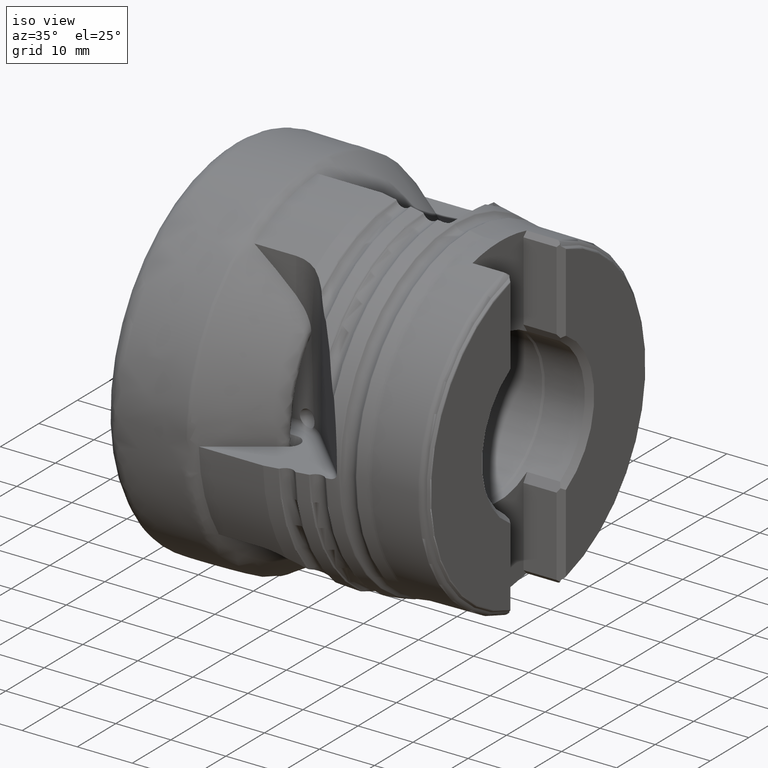
[diagram: clean part render]
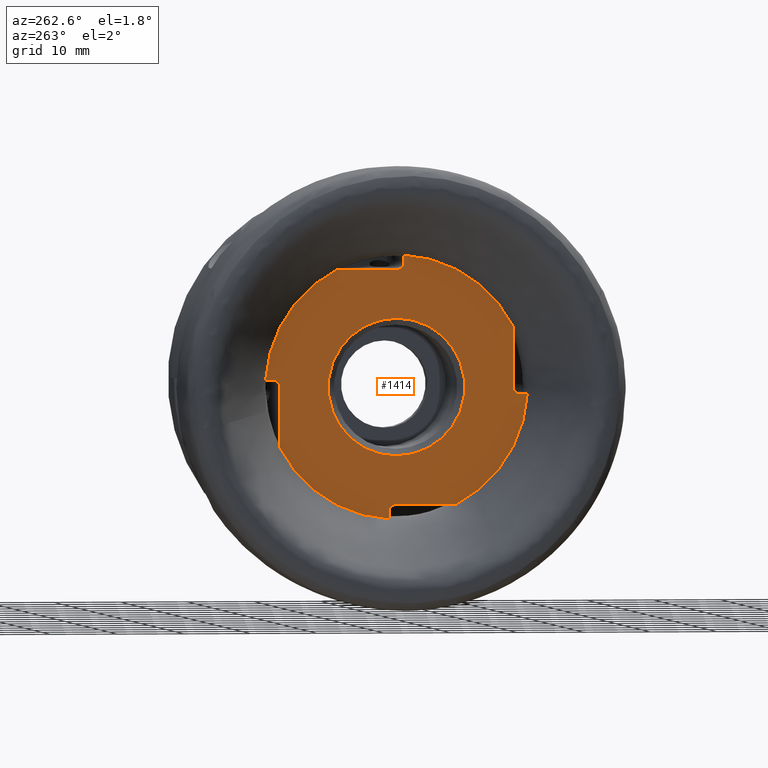
[diagram: tour spotlight — one face highlighted and labeled with its STEP entity id]
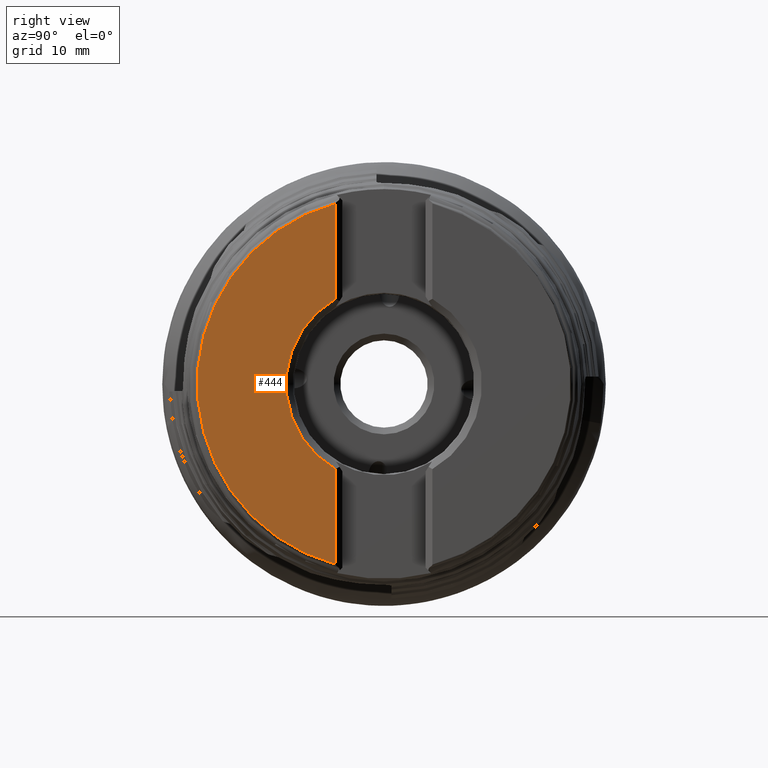
[diagram: tour spotlight — one face highlighted and labeled with its STEP entity id]
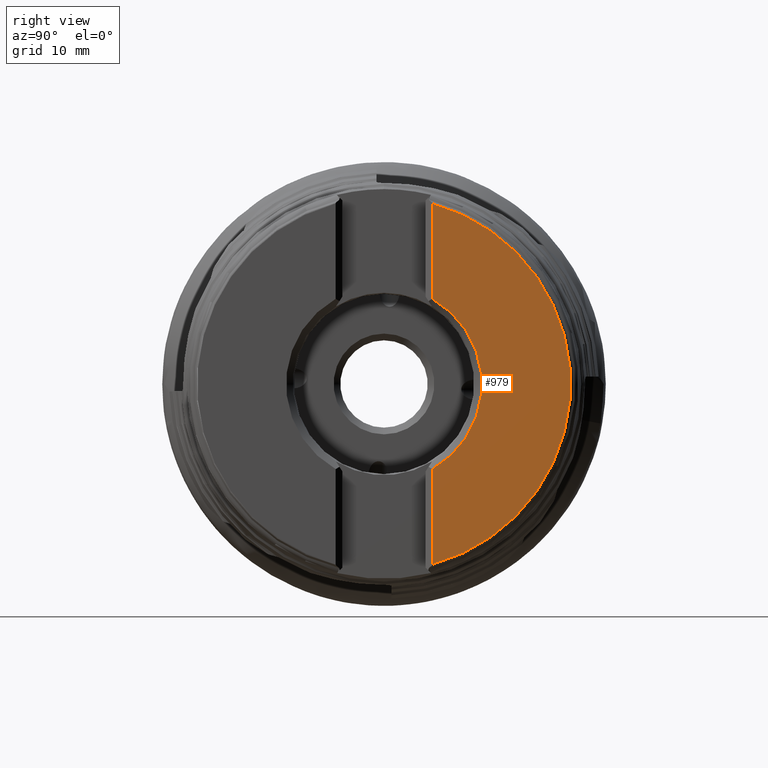
[diagram: tour spotlight — one face highlighted and labeled with its STEP entity id]
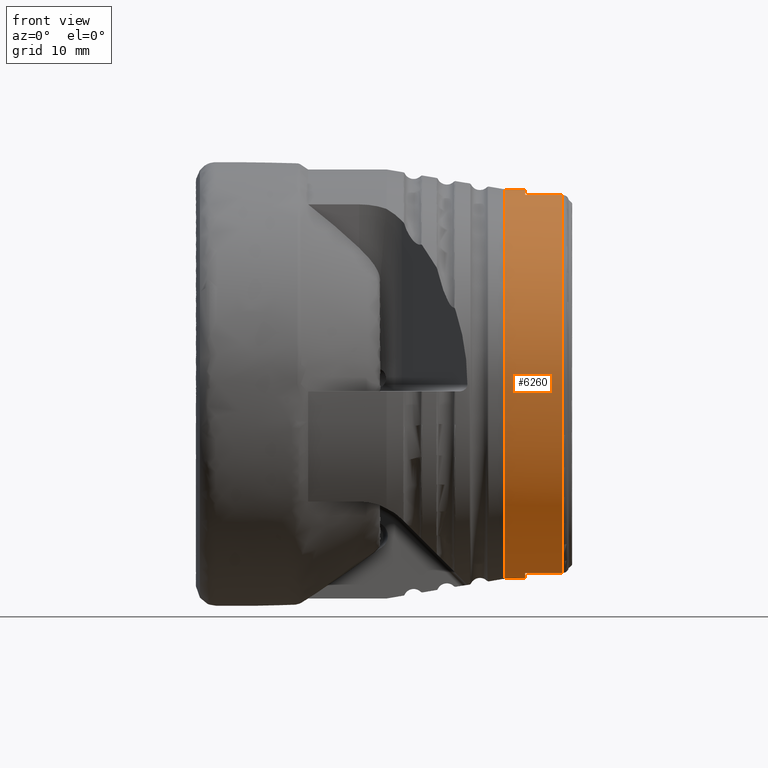
[diagram: tour spotlight — one face highlighted and labeled with its STEP entity id]
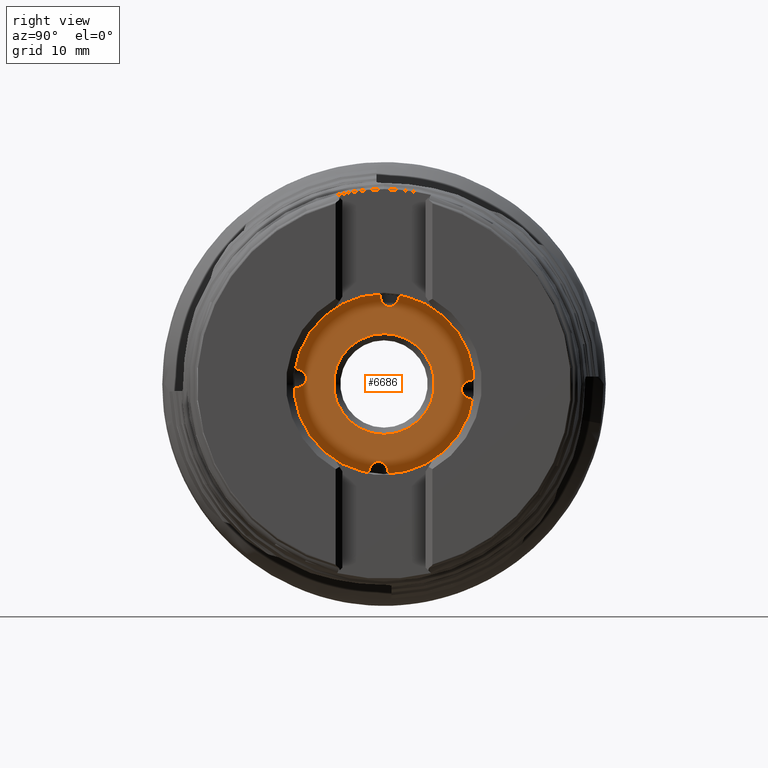
[diagram: tour spotlight — one face highlighted and labeled with its STEP entity id]
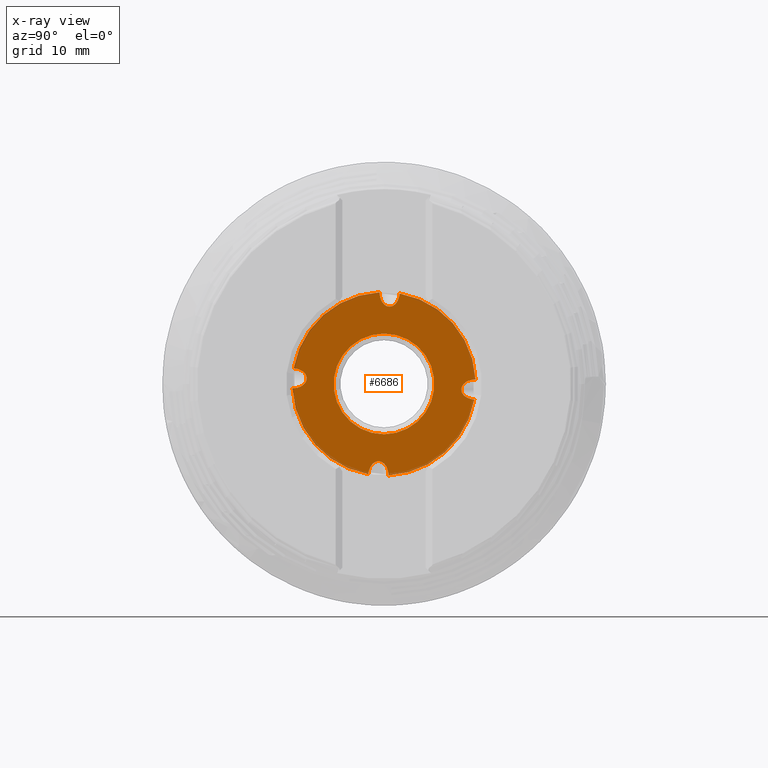
[diagram: x-ray of the same camera — body ghosted, this tour face saturated]
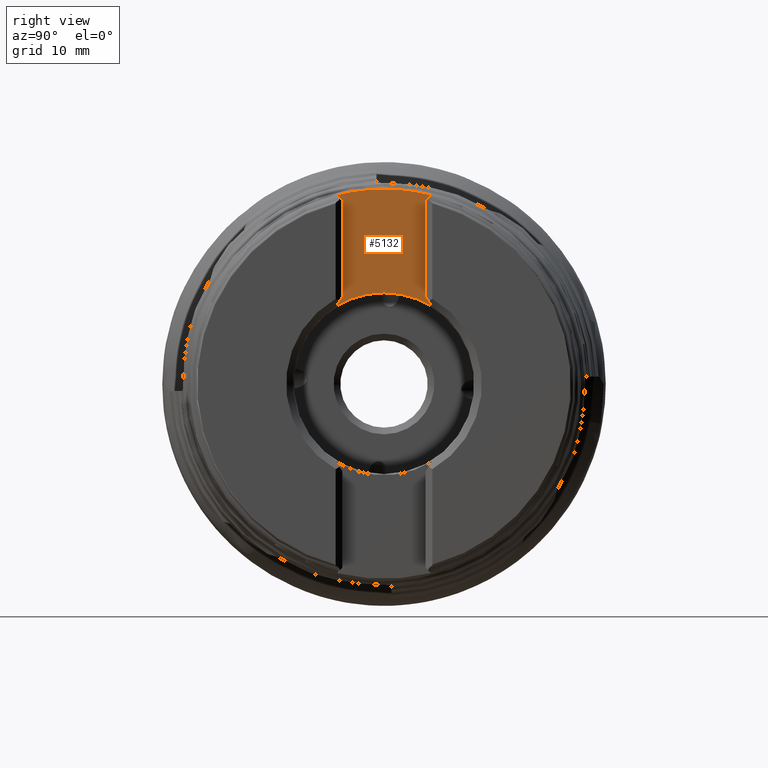
[diagram: tour spotlight — one face highlighted and labeled with its STEP entity id]
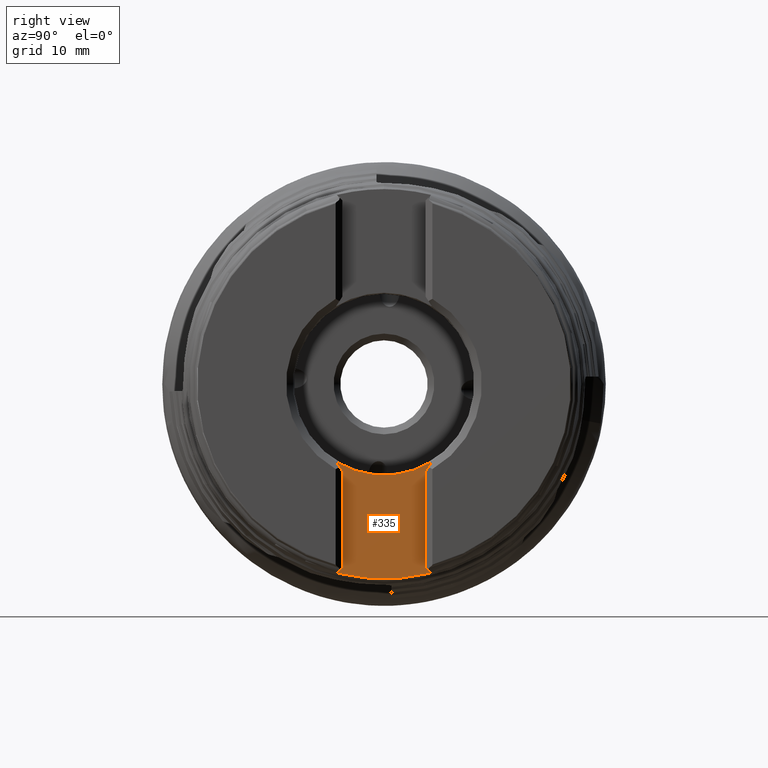
[diagram: tour spotlight — one face highlighted and labeled with its STEP entity id]
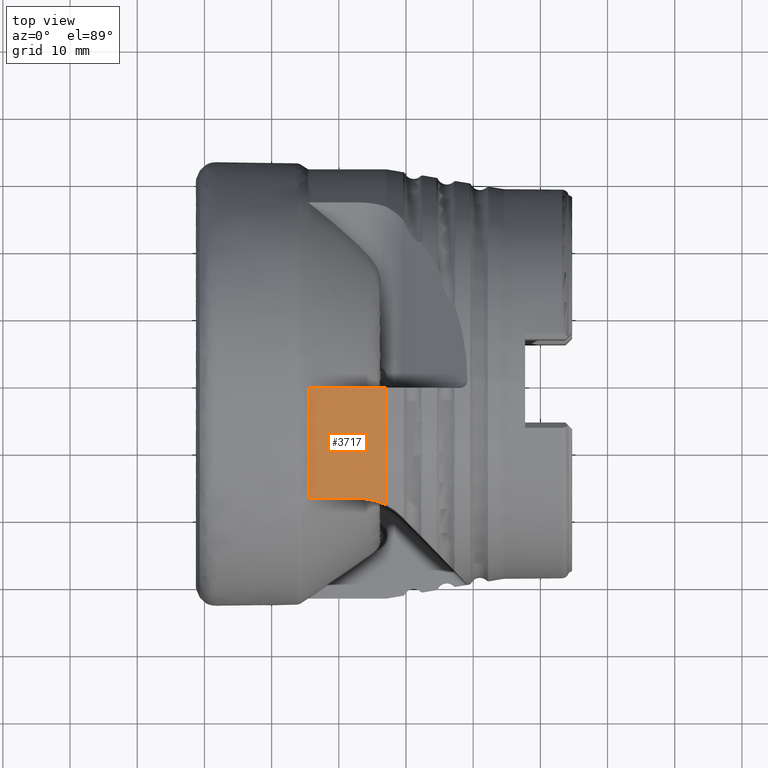
[diagram: tour spotlight — one face highlighted and labeled with its STEP entity id]
A machine part: a face-by-face anatomy tour. The part has 156 B-rep faces; the first image is the clean iso view, then the 8 largest visible faces are spotlighted one at a time (largest first), each with its STEP entity span.

Face 1 — auxiliary view, entity #1414. In plain terms, the highlighted planar face has unit normal (1, 0, 0).
Definition (entity closure, byte-faithful):
#97 = AXIS2_PLACEMENT_3D ( 'NONE', #2417, #5689, #4149 ) ;
#157 = VERTEX_POINT ( 'NONE', #573 ) ;
#193 = VERTEX_POINT ( 'NONE', #399 ) ;
#258 = VERTEX_POINT ( 'NONE', #1388 ) ;
#262 = EDGE_CURVE ( 'NONE', #5828, #193, #5114, .T. ) ;
#277 = CARTESIAN_POINT ( 'NONE',  ( 12.29999999999999900, 8.966332676333999900, 17.50000000000000000 ) ) ;
#316 = ORIENTED_EDGE ( 'NONE', *, *, #3382, .F. ) ;
#373 = CARTESIAN_POINT ( 'NONE',  ( 12.29999999999999900, 21.37099999999999900, 17.50000000000000000 ) ) ;
#398 = EDGE_CURVE ( 'NONE', #1017, #5828, #415, .T. ) ;
#399 = CARTESIAN_POINT ( 'NONE',  ( 12.29999999999999900, -18.49999999999999600, -1.100000000000065800 ) ) ;
#415 = CIRCLE ( 'NONE', #97, 19.66329376433905600 ) ;
#421 = CARTESIAN_POINT ( 'NONE',  ( 12.29999999999999900, 17.50000000000000000, 0.1000000000001843000 ) ) ;
#443 = LINE ( 'NONE', #2611, #6798 ) ;
#499 = DIRECTION ( 'NONE',  ( -1.000000000000000000, -0.0000000000000000000, -0.0000000000000000000 ) ) ;
#521 = VERTEX_POINT ( 'NONE', #2186 ) ;
#538 = CARTESIAN_POINT ( 'NONE',  ( 12.29999999999999900, 19.63250166592873600, 1.100000000000207000 ) ) ;
#573 = CARTESIAN_POINT ( 'NONE',  ( 12.29999999999999900, 0.1000000000001243000, -17.49999999999999600 ) ) ;
#739 = CARTESIAN_POINT ( 'NONE',  ( 12.29999999999999200, 0.0000000000000000000, 0.0000000000000000000 ) ) ;
#773 = EDGE_CURVE ( 'NONE', #6380, #2682, #6277, .T. ) ;
#800 = FACE_OUTER_BOUND ( 'NONE', #3250, .T. ) ;
#827 = ORIENTED_EDGE ( 'NONE', *, *, #2426, .T. ) ;
#869 = CIRCLE ( 'NONE', #1316, 1.000000000000000000 ) ;
#922 = VECTOR ( 'NONE', #2641, 1000.000000000000000 ) ;
#947 = CIRCLE ( 'NONE', #6355, 19.66329376433905600 ) ;
#954 = EDGE_CURVE ( 'NONE', #521, #2705, #1415, .T. ) ;
#1017 = VERTEX_POINT ( 'NONE', #2220 ) ;
#1041 = LINE ( 'NONE', #373, #3858 ) ;
#1153 = DIRECTION ( 'NONE',  ( 0.0000000000000000000, 0.0000000000000000000, 1.000000000000000000 ) ) ;
#1247 = EDGE_CURVE ( 'NONE', #2181, #258, #3734, .T. ) ;
#1271 = DIRECTION ( 'NONE',  ( 0.0000000000000000000, 0.0000000000000000000, 1.000000000000000000 ) ) ;
#1292 = DIRECTION ( 'NONE',  ( 0.0000000000000000000, -1.053567433422051900E-014, 1.000000000000000000 ) ) ;
#1316 = AXIS2_PLACEMENT_3D ( 'NONE', #3205, #3364, #3983 ) ;
#1384 = EDGE_CURVE ( 'NONE', #5844, #5650, #6561, .T. ) ;
#1388 = CARTESIAN_POINT ( 'NONE',  ( 12.29999999999999900, -17.50000000000000400, -0.1000000000000621800 ) ) ;
#1412 = ORIENTED_EDGE ( 'NONE', *, *, #2563, .F. ) ;
#1414 = ADVANCED_FACE ( 'NONE', ( #2222, #800 ), #2246, .F. ) ;
#1415 = LINE ( 'NONE', #1965, #5436 ) ;
#1497 = AXIS2_PLACEMENT_3D ( 'NONE', #2294, #2206, #2195 ) ;
#1573 = EDGE_CURVE ( 'NONE', #193, #258, #5566, .T. ) ;
#1596 = CARTESIAN_POINT ( 'NONE',  ( 12.29999999999999900, -1.100000000000001600, 19.63250166592874600 ) ) ;
#1617 = CARTESIAN_POINT ( 'NONE',  ( 12.29999999999999900, -19.63250166592873900, -1.100000000000069800 ) ) ;
#1636 = CARTESIAN_POINT ( 'NONE',  ( 12.29999999999999900, -17.50000000000003600, 8.966332676333946600 ) ) ;
#1697 = DIRECTION ( 'NONE',  ( -1.000000000000000000, -0.0000000000000000000, -0.0000000000000000000 ) ) ;
#1790 = ORIENTED_EDGE ( 'NONE', *, *, #954, .F. ) ;
#1965 = CARTESIAN_POINT ( 'NONE',  ( 12.29999999999999900, 17.50000000000000000, -4.078359534776760800E-014 ) ) ;
#1979 = CARTESIAN_POINT ( 'NONE',  ( 12.29999999999999900, 1.100000000000130700, -18.49999999999999300 ) ) ;
#1991 = VERTEX_POINT ( 'NONE', #6346 ) ;
#2003 = DIRECTION ( 'NONE',  ( 0.0000000000000000000, -1.000000000000000000, -6.123031769111886300E-017 ) ) ;
#2006 = AXIS2_PLACEMENT_3D ( 'NONE', #6333, #3191, #6862 ) ;
#2036 = CARTESIAN_POINT ( 'NONE',  ( 12.29999999999999900, 0.0000000000000000000, 0.0000000000000000000 ) ) ;
#2129 = CARTESIAN_POINT ( 'NONE',  ( 12.29999999999999900, -1.100000000000001400, 18.50000000000000400 ) ) ;
#2181 = VERTEX_POINT ( 'NONE', #1636 ) ;
#2186 = CARTESIAN_POINT ( 'NONE',  ( 12.29999999999999900, 17.50000000000009600, -8.966332676333820500 ) ) ;
#2195 = DIRECTION ( 'NONE',  ( 0.0000000000000000000, 0.0000000000000000000, -1.000000000000000000 ) ) ;
#2206 = DIRECTION ( 'NONE',  ( 1.000000000000000000, 0.0000000000000000000, 0.0000000000000000000 ) ) ;
#2220 = CARTESIAN_POINT ( 'NONE',  ( 12.29999999999999900, -8.966332676333880900, -17.50000000000006400 ) ) ;
#2222 = FACE_BOUND ( 'NONE', #3535, .T. ) ;
#2246 = PLANE ( 'NONE',  #1497 ) ;
#2294 = CARTESIAN_POINT ( 'NONE',  ( 12.29999999999999900, 21.37099999999999900, 0.0000000000000000000 ) ) ;
#2347 = VERTEX_POINT ( 'NONE', #4143 ) ;
#2376 = EDGE_CURVE ( 'NONE', #5650, #157, #4988, .T. ) ;
#2417 = CARTESIAN_POINT ( 'NONE',  ( 12.29999999999999200, 0.0000000000000000000, 0.0000000000000000000 ) ) ;
#2426 = EDGE_CURVE ( 'NONE', #2601, #2347, #3440, .T. ) ;
#2563 = EDGE_CURVE ( 'NONE', #4522, #1991, #1041, .T. ) ;
#2601 = VERTEX_POINT ( 'NONE', #538 ) ;
#2611 = CARTESIAN_POINT ( 'NONE',  ( 12.29999999999999900, 21.37100000000012300, -17.49999999999985100 ) ) ;
#2641 = DIRECTION ( 'NONE',  ( 0.0000000000000000000, 1.000000000000000000, 3.552711656534252200E-015 ) ) ;
#2679 = AXIS2_PLACEMENT_3D ( 'NONE', #739, #4463, #1271 ) ;
#2682 = VERTEX_POINT ( 'NONE', #2129 ) ;
#2705 = VERTEX_POINT ( 'NONE', #421 ) ;
#2715 = ORIENTED_EDGE ( 'NONE', *, *, #398, .T. ) ;
#2792 = CARTESIAN_POINT ( 'NONE',  ( 12.29999999999999900, 1.100000000000000300, -1.427928362092949600E-013 ) ) ;
#2804 = DIRECTION ( 'NONE',  ( 0.0000000000000000000, -7.044192995377385600E-015, 1.000000000000000000 ) ) ;
#2811 = CARTESIAN_POINT ( 'NONE',  ( 12.29999999999999900, 21.37100000000000200, -1.099999999999924100 ) ) ;
#2856 = EDGE_CURVE ( 'NONE', #2347, #2705, #869, .T. ) ;
#2981 = ORIENTED_EDGE ( 'NONE', *, *, #1573, .T. ) ;
#2990 = ORIENTED_EDGE ( 'NONE', *, *, #5046, .T. ) ;
#2997 = EDGE_CURVE ( 'NONE', #6138, #6138, #6713, .T. ) ;
#3191 = DIRECTION ( 'NONE',  ( 1.000000000000000000, 0.0000000000000000000, 0.0000000000000000000 ) ) ;
#3205 = CARTESIAN_POINT ( 'NONE',  ( 12.29999999999999900, 18.49999999999999600, 0.1000000000001948400 ) ) ;
#3213 = DIRECTION ( 'NONE',  ( 0.0000000000000000000, 3.552711656534252200E-015, -1.000000000000000000 ) ) ;
#3250 = EDGE_LOOP ( 'NONE', ( #5597, #2990, #3780, #6345, #1412, #3586, #827, #5374, #1790, #5028, #3251, #4720, #316, #2715, #3891, #2981 ) ) ;
#3251 = ORIENTED_EDGE ( 'NONE', *, *, #1384, .T. ) ;
#3257 = DIRECTION ( 'NONE',  ( 0.0000000000000000000, 6.123031769111886300E-017, -1.000000000000000000 ) ) ;
#3364 = DIRECTION ( 'NONE',  ( 1.000000000000000000, 0.0000000000000000000, 0.0000000000000000000 ) ) ;
#3368 = CIRCLE ( 'NONE', #2679, 19.66329376433905600 ) ;
#3382 = EDGE_CURVE ( 'NONE', #1017, #157, #443, .T. ) ;
#3394 = CARTESIAN_POINT ( 'NONE',  ( 12.29999999999999900, -17.50000000000000400, -1.380974548011429300E-013 ) ) ;
#3440 = LINE ( 'NONE', #5003, #4516 ) ;
#3535 = EDGE_LOOP ( 'NONE', ( #5791 ) ) ;
#3586 = ORIENTED_EDGE ( 'NONE', *, *, #4361, .T. ) ;
#3635 = AXIS2_PLACEMENT_3D ( 'NONE', #4850, #1697, #1153 ) ;
#3677 = CARTESIAN_POINT ( 'NONE',  ( 12.29999999999999200, 0.0000000000000000000, 0.0000000000000000000 ) ) ;
#3734 = LINE ( 'NONE', #3394, #6182 ) ;
#3780 = ORIENTED_EDGE ( 'NONE', *, *, #773, .T. ) ;
#3846 = EDGE_CURVE ( 'NONE', #521, #5844, #947, .T. ) ;
#3858 = VECTOR ( 'NONE', #2003, 1000.000000000000000 ) ;
#3891 = ORIENTED_EDGE ( 'NONE', *, *, #262, .T. ) ;
#3983 = DIRECTION ( 'NONE',  ( 0.0000000000000000000, 0.0000000000000000000, -1.000000000000000000 ) ) ;
#3987 = DIRECTION ( 'NONE',  ( -1.000000000000000000, -0.0000000000000000000, -0.0000000000000000000 ) ) ;
#4079 = AXIS2_PLACEMENT_3D ( 'NONE', #4525, #4538, #4567 ) ;
#4143 = CARTESIAN_POINT ( 'NONE',  ( 12.29999999999999900, 18.49999999999998600, 1.100000000000195000 ) ) ;
#4149 = DIRECTION ( 'NONE',  ( 0.0000000000000000000, 0.0000000000000000000, 1.000000000000000000 ) ) ;
#4227 = DIRECTION ( 'NONE',  ( 0.0000000000000000000, 0.0000000000000000000, 1.000000000000000000 ) ) ;
#4361 = EDGE_CURVE ( 'NONE', #4522, #2601, #5319, .T. ) ;
#4463 = DIRECTION ( 'NONE',  ( -1.000000000000000000, -0.0000000000000000000, -0.0000000000000000000 ) ) ;
#4516 = VECTOR ( 'NONE', #4836, 1000.000000000000000 ) ;
#4522 = VERTEX_POINT ( 'NONE', #277 ) ;
#4525 = CARTESIAN_POINT ( 'NONE',  ( 12.29999999999999900, 0.1000000000001301800, -18.50000000000000000 ) ) ;
#4538 = DIRECTION ( 'NONE',  ( 1.000000000000000000, 0.0000000000000000000, 0.0000000000000000000 ) ) ;
#4567 = DIRECTION ( 'NONE',  ( 0.0000000000000000000, 0.0000000000000000000, -1.000000000000000000 ) ) ;
#4720 = ORIENTED_EDGE ( 'NONE', *, *, #2376, .T. ) ;
#4836 = DIRECTION ( 'NONE',  ( 0.0000000000000000000, -1.000000000000000000, -1.053567433422051900E-014 ) ) ;
#4850 = CARTESIAN_POINT ( 'NONE',  ( 12.29999999999999200, 0.0000000000000000000, 0.0000000000000000000 ) ) ;
#4854 = AXIS2_PLACEMENT_3D ( 'NONE', #2036, #3987, #6595 ) ;
#4872 = VECTOR ( 'NONE', #3257, 1000.000000000000000 ) ;
#4988 = CIRCLE ( 'NONE', #4079, 1.000000000000000900 ) ;
#5003 = CARTESIAN_POINT ( 'NONE',  ( 12.29999999999999900, 21.37099999999998800, 1.100000000000225200 ) ) ;
#5028 = ORIENTED_EDGE ( 'NONE', *, *, #3846, .T. ) ;
#5046 = EDGE_CURVE ( 'NONE', #2181, #6380, #3368, .T. ) ;
#5114 = LINE ( 'NONE', #2811, #922 ) ;
#5161 = VECTOR ( 'NONE', #2804, 1000.000000000000000 ) ;
#5210 = DIRECTION ( 'NONE',  ( 0.0000000000000000000, 1.000000000000000000, 7.044192995377386400E-015 ) ) ;
#5319 = CIRCLE ( 'NONE', #3635, 19.66329376433905600 ) ;
#5370 = AXIS2_PLACEMENT_3D ( 'NONE', #6244, #6230, #6214 ) ;
#5374 = ORIENTED_EDGE ( 'NONE', *, *, #2856, .T. ) ;
#5392 = CIRCLE ( 'NONE', #2006, 1.000000000000000900 ) ;
#5436 = VECTOR ( 'NONE', #1292, 1000.000000000000000 ) ;
#5566 = CIRCLE ( 'NONE', #5370, 1.000000000000000000 ) ;
#5597 = ORIENTED_EDGE ( 'NONE', *, *, #1247, .F. ) ;
#5650 = VERTEX_POINT ( 'NONE', #1979 ) ;
#5689 = DIRECTION ( 'NONE',  ( -1.000000000000000000, -0.0000000000000000000, -0.0000000000000000000 ) ) ;
#5791 = ORIENTED_EDGE ( 'NONE', *, *, #2997, .F. ) ;
#5828 = VERTEX_POINT ( 'NONE', #1617 ) ;
#5844 = VERTEX_POINT ( 'NONE', #6373 ) ;
#5955 = CARTESIAN_POINT ( 'NONE',  ( 12.29999999999999900, 0.0000000000000000000, 10.24999999999999500 ) ) ;
#6138 = VERTEX_POINT ( 'NONE', #5955 ) ;
#6182 = VECTOR ( 'NONE', #3213, 1000.000000000000000 ) ;
#6214 = DIRECTION ( 'NONE',  ( 0.0000000000000000000, 0.0000000000000000000, -1.000000000000000000 ) ) ;
#6230 = DIRECTION ( 'NONE',  ( 1.000000000000000000, 0.0000000000000000000, 0.0000000000000000000 ) ) ;
#6244 = CARTESIAN_POINT ( 'NONE',  ( 12.29999999999999900, -18.50000000000000000, -0.1000000000000657300 ) ) ;
#6277 = LINE ( 'NONE', #6630, #4872 ) ;
#6333 = CARTESIAN_POINT ( 'NONE',  ( 12.29999999999999900, -0.1000000000000010700, 18.50000000000000400 ) ) ;
#6335 = EDGE_CURVE ( 'NONE', #2682, #1991, #5392, .T. ) ;
#6345 = ORIENTED_EDGE ( 'NONE', *, *, #6335, .T. ) ;
#6346 = CARTESIAN_POINT ( 'NONE',  ( 12.29999999999999900, -0.09999999999999939500, 17.50000000000000000 ) ) ;
#6355 = AXIS2_PLACEMENT_3D ( 'NONE', #3677, #499, #4227 ) ;
#6373 = CARTESIAN_POINT ( 'NONE',  ( 12.29999999999999900, 1.100000000000138600, -19.63250166592873900 ) ) ;
#6380 = VERTEX_POINT ( 'NONE', #1596 ) ;
#6561 = LINE ( 'NONE', #2792, #5161 ) ;
#6595 = DIRECTION ( 'NONE',  ( 0.0000000000000000000, 0.0000000000000000000, 1.000000000000000000 ) ) ;
#6630 = CARTESIAN_POINT ( 'NONE',  ( 12.29999999999999900, -1.100000000000000300, -1.375906468837131800E-015 ) ) ;
#6713 = CIRCLE ( 'NONE', #4854, 10.24999999999999500 ) ;
#6798 = VECTOR ( 'NONE', #5210, 1000.000000000000000 ) ;
#6862 = DIRECTION ( 'NONE',  ( 0.0000000000000000000, 0.0000000000000000000, -1.000000000000000000 ) ) ;

Face 2 — right view, entity #444. In plain terms, the highlighted planar face has unit normal (-1, 0, -0).
Definition (entity closure, byte-faithful):
#45 = CARTESIAN_POINT ( 'NONE',  ( 54.72299999999997800, -7.199999999999977100, -29.00000000000000000 ) ) ;
#260 = VECTOR ( 'NONE', #1179, 1000.000000000000000 ) ;
#278 = ORIENTED_EDGE ( 'NONE', *, *, #6722, .F. ) ;
#444 = ADVANCED_FACE ( 'NONE', ( #5698 ), #505, .F. ) ;
#505 = PLANE ( 'NONE',  #2268 ) ;
#715 = DIRECTION ( 'NONE',  ( -1.000000000000000000, -0.0000000000000000000, -0.0000000000000000000 ) ) ;
#796 = CARTESIAN_POINT ( 'NONE',  ( 54.72299999999999900, 0.0000000000000000000, 0.0000000000000000000 ) ) ;
#846 = VERTEX_POINT ( 'NONE', #5996 ) ;
#940 = DIRECTION ( 'NONE',  ( -1.000000000000000000, -0.0000000000000000000, -0.0000000000000000000 ) ) ;
#976 = AXIS2_PLACEMENT_3D ( 'NONE', #796, #715, #1075 ) ;
#1075 = DIRECTION ( 'NONE',  ( 0.0000000000000000000, 0.0000000000000000000, 1.000000000000000000 ) ) ;
#1166 = EDGE_CURVE ( 'NONE', #6741, #3580, #4069, .T. ) ;
#1179 = DIRECTION ( 'NONE',  ( -0.0000000000000000000, -0.0000000000000000000, 1.000000000000000000 ) ) ;
#1195 = CARTESIAN_POINT ( 'NONE',  ( 54.72299999999997800, -7.199999999999977100, -29.00000000000000000 ) ) ;
#1231 = VERTEX_POINT ( 'NONE', #3375 ) ;
#1233 = DIRECTION ( 'NONE',  ( -0.0000000000000000000, 0.0000000000000000000, 1.000000000000000000 ) ) ;
#1269 = CIRCLE ( 'NONE', #1523, 27.78999999999999900 ) ;
#1523 = AXIS2_PLACEMENT_3D ( 'NONE', #4114, #940, #4638 ) ;
#1809 = ORIENTED_EDGE ( 'NONE', *, *, #4104, .T. ) ;
#1988 = ORIENTED_EDGE ( 'NONE', *, *, #2822, .T. ) ;
#2268 = AXIS2_PLACEMENT_3D ( 'NONE', #2539, #2847, #1233 ) ;
#2539 = CARTESIAN_POINT ( 'NONE',  ( 54.72299999999999900, 27.78999999999999900, 0.0000000000000000000 ) ) ;
#2822 = EDGE_CURVE ( 'NONE', #3580, #1231, #4746, .T. ) ;
#2847 = DIRECTION ( 'NONE',  ( -1.000000000000000000, 0.0000000000000000000, -0.0000000000000000000 ) ) ;
#3375 = CARTESIAN_POINT ( 'NONE',  ( 54.72299999999997800, -7.199999999999973500, 12.67243563802948400 ) ) ;
#3496 = DIRECTION ( 'NONE',  ( -0.0000000000000000000, -0.0000000000000000000, 1.000000000000000000 ) ) ;
#3580 = VERTEX_POINT ( 'NONE', #6057 ) ;
#4069 = LINE ( 'NONE', #45, #6348 ) ;
#4104 = EDGE_CURVE ( 'NONE', #1231, #846, #5384, .T. ) ;
#4114 = CARTESIAN_POINT ( 'NONE',  ( 54.72299999999999900, 0.0000000000000000000, 0.0000000000000000000 ) ) ;
#4638 = DIRECTION ( 'NONE',  ( 0.0000000000000000000, 0.0000000000000000000, 1.000000000000000000 ) ) ;
#4746 = CIRCLE ( 'NONE', #976, 14.57500000000000300 ) ;
#4954 = ORIENTED_EDGE ( 'NONE', *, *, #1166, .T. ) ;
#5147 = CARTESIAN_POINT ( 'NONE',  ( 54.72299999999997800, -7.199999999999975300, -26.84108976923254600 ) ) ;
#5384 = LINE ( 'NONE', #1195, #260 ) ;
#5698 = FACE_OUTER_BOUND ( 'NONE', #6205, .T. ) ;
#5996 = CARTESIAN_POINT ( 'NONE',  ( 54.72299999999997800, -7.199999999999975300, 26.84108976923254600 ) ) ;
#6057 = CARTESIAN_POINT ( 'NONE',  ( 54.72299999999997800, -7.199999999999973500, -12.67243563802948400 ) ) ;
#6205 = EDGE_LOOP ( 'NONE', ( #278, #4954, #1988, #1809 ) ) ;
#6348 = VECTOR ( 'NONE', #3496, 1000.000000000000000 ) ;
#6722 = EDGE_CURVE ( 'NONE', #6741, #846, #1269, .T. ) ;
#6741 = VERTEX_POINT ( 'NONE', #5147 ) ;

Face 3 — right view, entity #979. In plain terms, the highlighted planar face has unit normal (-1, 0, -0).
Definition (entity closure, byte-faithful):
#9 = CARTESIAN_POINT ( 'NONE',  ( 54.72299999999997800, 7.199999999999975300, 26.84108976923254600 ) ) ;
#829 = CARTESIAN_POINT ( 'NONE',  ( 54.72299999999999900, 27.78999999999999900, 0.0000000000000000000 ) ) ;
#874 = VERTEX_POINT ( 'NONE', #2564 ) ;
#908 = EDGE_CURVE ( 'NONE', #6458, #874, #1586, .T. ) ;
#979 = ADVANCED_FACE ( 'NONE', ( #2670 ), #3658, .F. ) ;
#1142 = DIRECTION ( 'NONE',  ( -0.0000000000000000000, -0.0000000000000000000, 1.000000000000000000 ) ) ;
#1146 = ORIENTED_EDGE ( 'NONE', *, *, #6462, .F. ) ;
#1407 = ORIENTED_EDGE ( 'NONE', *, *, #5180, .F. ) ;
#1479 = DIRECTION ( 'NONE',  ( -1.000000000000000000, 0.0000000000000000000, -0.0000000000000000000 ) ) ;
#1509 = CARTESIAN_POINT ( 'NONE',  ( 54.72299999999999900, 0.0000000000000000000, 0.0000000000000000000 ) ) ;
#1586 = CIRCLE ( 'NONE', #4597, 14.57500000000000300 ) ;
#1598 = DIRECTION ( 'NONE',  ( -1.000000000000000000, -0.0000000000000000000, -0.0000000000000000000 ) ) ;
#1818 = AXIS2_PLACEMENT_3D ( 'NONE', #1509, #5183, #2044 ) ;
#2044 = DIRECTION ( 'NONE',  ( 0.0000000000000000000, 0.0000000000000000000, 1.000000000000000000 ) ) ;
#2105 = CARTESIAN_POINT ( 'NONE',  ( 54.72299999999997800, 7.199999999999975300, -26.84108976923254600 ) ) ;
#2154 = EDGE_LOOP ( 'NONE', ( #1407, #1146, #5245, #5858 ) ) ;
#2214 = EDGE_CURVE ( 'NONE', #2698, #874, #4108, .T. ) ;
#2234 = CARTESIAN_POINT ( 'NONE',  ( 54.72299999999997800, 7.199999999999973500, 12.67243563802948400 ) ) ;
#2410 = CARTESIAN_POINT ( 'NONE',  ( 54.72299999999997800, 7.199999999999977100, -29.00000000000000000 ) ) ;
#2551 = DIRECTION ( 'NONE',  ( -0.0000000000000000000, -0.0000000000000000000, 1.000000000000000000 ) ) ;
#2564 = CARTESIAN_POINT ( 'NONE',  ( 54.72299999999999900, 7.199999999999986000, -12.67243563802950500 ) ) ;
#2670 = FACE_OUTER_BOUND ( 'NONE', #2154, .T. ) ;
#2698 = VERTEX_POINT ( 'NONE', #2105 ) ;
#3217 = DIRECTION ( 'NONE',  ( -0.0000000000000000000, 0.0000000000000000000, 1.000000000000000000 ) ) ;
#3658 = PLANE ( 'NONE',  #6690 ) ;
#3934 = CIRCLE ( 'NONE', #1818, 27.78999999999999900 ) ;
#4007 = CARTESIAN_POINT ( 'NONE',  ( 54.72299999999999900, 0.0000000000000000000, 0.0000000000000000000 ) ) ;
#4108 = LINE ( 'NONE', #2410, #5156 ) ;
#4597 = AXIS2_PLACEMENT_3D ( 'NONE', #4007, #1598, #5970 ) ;
#4901 = VECTOR ( 'NONE', #1142, 1000.000000000000000 ) ;
#5056 = LINE ( 'NONE', #5894, #4901 ) ;
#5156 = VECTOR ( 'NONE', #2551, 1000.000000000000000 ) ;
#5180 = EDGE_CURVE ( 'NONE', #5861, #2698, #3934, .T. ) ;
#5183 = DIRECTION ( 'NONE',  ( -1.000000000000000000, -0.0000000000000000000, -0.0000000000000000000 ) ) ;
#5245 = ORIENTED_EDGE ( 'NONE', *, *, #908, .T. ) ;
#5858 = ORIENTED_EDGE ( 'NONE', *, *, #2214, .F. ) ;
#5861 = VERTEX_POINT ( 'NONE', #9 ) ;
#5894 = CARTESIAN_POINT ( 'NONE',  ( 54.72299999999997800, 7.199999999999977100, -29.00000000000000000 ) ) ;
#5970 = DIRECTION ( 'NONE',  ( 0.0000000000000000000, 0.0000000000000000000, 1.000000000000000000 ) ) ;
#6458 = VERTEX_POINT ( 'NONE', #2234 ) ;
#6462 = EDGE_CURVE ( 'NONE', #6458, #5861, #5056, .T. ) ;
#6690 = AXIS2_PLACEMENT_3D ( 'NONE', #829, #1479, #3217 ) ;

Face 4 — front view, entity #6260. In plain terms, the highlighted cylindrical surface (bore or boss wall) has radius 29 mm, axis along (-1, -0, -0).
Definition (entity closure, byte-faithful):
#99 = FACE_OUTER_BOUND ( 'NONE', #3829, .T. ) ;
#117 = DIRECTION ( 'NONE',  ( -1.000000000000000000, -0.0000000000000000000, -0.0000000000000000000 ) ) ;
#186 = CIRCLE ( 'NONE', #3695, 29.00000000000000000 ) ;
#280 = VECTOR ( 'NONE', #6445, 1000.000000000000000 ) ;
#296 = DIRECTION ( 'NONE',  ( 0.0000000000000000000, 0.0000000000000000000, 1.000000000000000000 ) ) ;
#339 = ORIENTED_EDGE ( 'NONE', *, *, #2813, .T. ) ;
#351 = CIRCLE ( 'NONE', #3788, 29.00000000000000000 ) ;
#362 = VERTEX_POINT ( 'NONE', #4919 ) ;
#426 = DIRECTION ( 'NONE',  ( -1.000000000000000000, -0.0000000000000000000, -0.0000000000000000000 ) ) ;
#595 = EDGE_CURVE ( 'NONE', #2898, #5355, #3979, .T. ) ;
#769 = VERTEX_POINT ( 'NONE', #1128 ) ;
#945 = AXIS2_PLACEMENT_3D ( 'NONE', #5713, #426, #6247 ) ;
#1082 = EDGE_CURVE ( 'NONE', #4781, #3623, #6512, .T. ) ;
#1127 = VECTOR ( 'NONE', #2560, 1000.000000000000000 ) ;
#1128 = CARTESIAN_POINT ( 'NONE',  ( 53.22299999999999900, 7.010412606769227400, -28.13990254217045700 ) ) ;
#1141 = CARTESIAN_POINT ( 'NONE',  ( 47.72299999999999200, -7.010412606769230100, 28.13990254217045700 ) ) ;
#1257 = DIRECTION ( 'NONE',  ( -1.000000000000000000, -0.0000000000000000000, -0.0000000000000000000 ) ) ;
#1413 = DIRECTION ( 'NONE',  ( -1.000000000000000000, -0.0000000000000000000, -0.0000000000000000000 ) ) ;
#1520 = EDGE_CURVE ( 'NONE', #769, #5293, #6238, .T. ) ;
#1603 = ORIENTED_EDGE ( 'NONE', *, *, #6631, .T. ) ;
#1817 = DIRECTION ( 'NONE',  ( 0.0000000000000000000, 0.0000000000000000000, 1.000000000000000000 ) ) ;
#1912 = CARTESIAN_POINT ( 'NONE',  ( 0.0000000000000000000, -7.010412606769227400, -28.13990254217045400 ) ) ;
#2110 = EDGE_LOOP ( 'NONE', ( #5723, #6020, #339, #4006, #6168, #5581, #1603, #2338 ) ) ;
#2217 = LINE ( 'NONE', #3309, #6228 ) ;
#2282 = EDGE_CURVE ( 'NONE', #3623, #769, #3773, .T. ) ;
#2319 = AXIS2_PLACEMENT_3D ( 'NONE', #3503, #3528, #3550 ) ;
#2338 = ORIENTED_EDGE ( 'NONE', *, *, #1082, .T. ) ;
#2505 = VECTOR ( 'NONE', #5964, 1000.000000000000000 ) ;
#2560 = DIRECTION ( 'NONE',  ( 1.000000000000000000, 0.0000000000000000000, 0.0000000000000000000 ) ) ;
#2621 = CYLINDRICAL_SURFACE ( 'NONE', #945, 29.00000000000000000 ) ;
#2813 = EDGE_CURVE ( 'NONE', #5293, #3416, #6135, .T. ) ;
#2898 = VERTEX_POINT ( 'NONE', #3615 ) ;
#3309 = CARTESIAN_POINT ( 'NONE',  ( 0.0000000000000000000, -7.010412606769230100, 28.13990254217045400 ) ) ;
#3371 = ORIENTED_EDGE ( 'NONE', *, *, #6030, .F. ) ;
#3416 = VERTEX_POINT ( 'NONE', #5236 ) ;
#3488 = DIRECTION ( 'NONE',  ( -1.000000000000000000, 0.0000000000000000000, 0.0000000000000000000 ) ) ;
#3503 = CARTESIAN_POINT ( 'NONE',  ( 53.22299999999999900, 0.0000000000000000000, 0.0000000000000000000 ) ) ;
#3528 = DIRECTION ( 'NONE',  ( -1.000000000000000000, -0.0000000000000000000, -0.0000000000000000000 ) ) ;
#3550 = DIRECTION ( 'NONE',  ( 0.0000000000000000000, 0.0000000000000000000, 1.000000000000000000 ) ) ;
#3615 = CARTESIAN_POINT ( 'NONE',  ( 53.22299999999999900, -7.010412606769227400, -28.13990254217045700 ) ) ;
#3623 = VERTEX_POINT ( 'NONE', #6123 ) ;
#3695 = AXIS2_PLACEMENT_3D ( 'NONE', #4445, #1257, #4941 ) ;
#3773 = CIRCLE ( 'NONE', #2319, 29.00000000000000000 ) ;
#3788 = AXIS2_PLACEMENT_3D ( 'NONE', #6621, #3488, #296 ) ;
#3829 = EDGE_LOOP ( 'NONE', ( #3371 ) ) ;
#3884 = VERTEX_POINT ( 'NONE', #1141 ) ;
#3979 = CIRCLE ( 'NONE', #4392, 29.00000000000000000 ) ;
#4006 = ORIENTED_EDGE ( 'NONE', *, *, #4460, .T. ) ;
#4392 = AXIS2_PLACEMENT_3D ( 'NONE', #4405, #1413, #1817 ) ;
#4398 = CARTESIAN_POINT ( 'NONE',  ( 47.72299999999999200, 0.0000000000000000000, 0.0000000000000000000 ) ) ;
#4405 = CARTESIAN_POINT ( 'NONE',  ( 53.22299999999999900, 0.0000000000000000000, 0.0000000000000000000 ) ) ;
#4445 = CARTESIAN_POINT ( 'NONE',  ( 44.72299999999999900, 0.0000000000000000000, 0.0000000000000000000 ) ) ;
#4460 = EDGE_CURVE ( 'NONE', #3416, #2898, #5661, .T. ) ;
#4603 = DIRECTION ( 'NONE',  ( -1.000000000000000000, 0.0000000000000000000, 0.0000000000000000000 ) ) ;
#4622 = CARTESIAN_POINT ( 'NONE',  ( 0.0000000000000000000, 7.010412606769227400, 28.13990254217045400 ) ) ;
#4781 = VERTEX_POINT ( 'NONE', #5359 ) ;
#4919 = CARTESIAN_POINT ( 'NONE',  ( 44.72299999999999900, 0.0000000000000000000, 29.00000000000000000 ) ) ;
#4941 = DIRECTION ( 'NONE',  ( 0.0000000000000000000, 0.0000000000000000000, 1.000000000000000000 ) ) ;
#5130 = DIRECTION ( 'NONE',  ( 0.0000000000000000000, 0.0000000000000000000, 1.000000000000000000 ) ) ;
#5236 = CARTESIAN_POINT ( 'NONE',  ( 47.72299999999999200, -7.010412606769228300, -28.13990254217045700 ) ) ;
#5293 = VERTEX_POINT ( 'NONE', #5360 ) ;
#5341 = EDGE_CURVE ( 'NONE', #5355, #3884, #2217, .T. ) ;
#5355 = VERTEX_POINT ( 'NONE', #6471 ) ;
#5359 = CARTESIAN_POINT ( 'NONE',  ( 47.72299999999999200, 7.010412606769228300, 28.13990254217045700 ) ) ;
#5360 = CARTESIAN_POINT ( 'NONE',  ( 47.72299999999999200, 7.010412606769228300, -28.13990254217045700 ) ) ;
#5581 = ORIENTED_EDGE ( 'NONE', *, *, #5341, .T. ) ;
#5661 = LINE ( 'NONE', #1912, #1127 ) ;
#5713 = CARTESIAN_POINT ( 'NONE',  ( 0.0000000000000000000, 0.0000000000000000000, 0.0000000000000000000 ) ) ;
#5723 = ORIENTED_EDGE ( 'NONE', *, *, #2282, .T. ) ;
#5964 = DIRECTION ( 'NONE',  ( 1.000000000000000000, 0.0000000000000000000, 0.0000000000000000000 ) ) ;
#6020 = ORIENTED_EDGE ( 'NONE', *, *, #1520, .T. ) ;
#6030 = EDGE_CURVE ( 'NONE', #362, #362, #186, .T. ) ;
#6123 = CARTESIAN_POINT ( 'NONE',  ( 53.22299999999999900, 7.010412606769227400, 28.13990254217045700 ) ) ;
#6135 = CIRCLE ( 'NONE', #6743, 29.00000000000000000 ) ;
#6168 = ORIENTED_EDGE ( 'NONE', *, *, #595, .T. ) ;
#6228 = VECTOR ( 'NONE', #117, 1000.000000000000000 ) ;
#6238 = LINE ( 'NONE', #6486, #280 ) ;
#6247 = DIRECTION ( 'NONE',  ( 0.0000000000000000000, 0.0000000000000000000, 1.000000000000000000 ) ) ;
#6260 = ADVANCED_FACE ( 'NONE', ( #99, #6800 ), #2621, .T. ) ;
#6445 = DIRECTION ( 'NONE',  ( -1.000000000000000000, -0.0000000000000000000, -0.0000000000000000000 ) ) ;
#6471 = CARTESIAN_POINT ( 'NONE',  ( 53.22299999999999900, -7.010412606769230900, 28.13990254217045400 ) ) ;
#6486 = CARTESIAN_POINT ( 'NONE',  ( 0.0000000000000000000, 7.010412606769227400, -28.13990254217045400 ) ) ;
#6512 = LINE ( 'NONE', #4622, #2505 ) ;
#6621 = CARTESIAN_POINT ( 'NONE',  ( 47.72299999999999200, 0.0000000000000000000, 0.0000000000000000000 ) ) ;
#6631 = EDGE_CURVE ( 'NONE', #3884, #4781, #351, .T. ) ;
#6743 = AXIS2_PLACEMENT_3D ( 'NONE', #4398, #4603, #5130 ) ;
#6800 = FACE_OUTER_BOUND ( 'NONE', #2110, .T. ) ;

Face 5 — right view, entity #6686. An x-ray twin of the same camera follows (body ghosted, this face saturated) — the face is partly hidden behind the body. In plain terms, the highlighted planar face has unit normal (1, 0, 0).
Definition (entity closure, byte-faithful):
#78 = CARTESIAN_POINT ( 'NONE',  ( 29.72300000000000600, 2.094654889929776300, 9.531655369084139900 ) ) ;
#86 = CARTESIAN_POINT ( 'NONE',  ( 29.72300000000000300, 9.700942392903584700, 0.6834823200042061700 ) ) ;
#197 = CARTESIAN_POINT ( 'NONE',  ( 29.72300000000000600, 0.6722691546077985700, -13.63343515713347100 ) ) ;
#308 = VERTEX_POINT ( 'NONE', #2389 ) ;
#311 = CARTESIAN_POINT ( 'NONE',  ( 29.72300000000000600, -2.094654889930025500, -9.531655369083443600 ) ) ;
#349 = CARTESIAN_POINT ( 'NONE',  ( 29.72300000000000600, 0.0000000000000000000, 0.0000000000000000000 ) ) ;
#382 = DIRECTION ( 'NONE',  ( -1.000000000000000000, -0.0000000000000000000, -0.0000000000000000000 ) ) ;
#488 = ORIENTED_EDGE ( 'NONE', *, *, #5085, .F. ) ;
#528 = CIRCLE ( 'NONE', #3197, 7.500000000000006200 ) ;
#569 = ORIENTED_EDGE ( 'NONE', *, *, #3833, .F. ) ;
#642 = CARTESIAN_POINT ( 'NONE',  ( 29.72299999999999200, -13.63343515713347500, -0.6722691546077511600 ) ) ;
#650 = VERTEX_POINT ( 'NONE', #5390 ) ;
#816 = AXIS2_PLACEMENT_3D ( 'NONE', #1425, #2506, #6160 ) ;
#902 = CARTESIAN_POINT ( 'NONE',  ( 29.72299999999999900, 0.0000000000000000000, 0.0000000000000000000 ) ) ;
#1012 = AXIS2_PLACEMENT_3D ( 'NONE', #5921, #5916, #5913 ) ;
#1168 = CARTESIAN_POINT ( 'NONE',  ( 29.72300000000000600, -0.6722691546125747500, 13.63343515713323500 ) ) ;
#1186 = VERTEX_POINT ( 'NONE', #4281 ) ;
#1227 = CARTESIAN_POINT ( 'NONE',  ( 29.72300000000000600, -13.45093736814986800, 2.322667414441739200 ) ) ;
#1266 = CARTESIAN_POINT ( 'NONE',  ( 29.72300000000000300, -9.700942392904083900, -0.6834823200041346700 ) ) ;
#1338 = DIRECTION ( 'NONE',  ( -1.000000000000000000, -0.0000000000000000000, -0.0000000000000000000 ) ) ;
#1425 = CARTESIAN_POINT ( 'NONE',  ( 29.72300000000000300, 13.65000000000000000, 0.0000000000000000000 ) ) ;
#1441 = FACE_OUTER_BOUND ( 'NONE', #4867, .T. ) ;
#1613 = EDGE_CURVE ( 'NONE', #4061, #3931, #2791, .T. ) ;
#1628 = CARTESIAN_POINT ( 'NONE',  ( 29.72300000000000600, 0.6722691546077985700, -13.63343515713347100 ) ) ;
#1707 = CARTESIAN_POINT ( 'NONE',  ( 29.72300000000000600, 13.45093736815072400, -2.322667414436798700 ) ) ;
#2219 = CARTESIAN_POINT ( 'NONE',  ( 29.72300000000000600, -13.45093736814986800, 2.322667414441739200 ) ) ;
#2229 = CARTESIAN_POINT ( 'NONE',  ( 29.72300000000000600, -0.6834823200037476500, 9.700942392904281100 ) ) ;
#2326 = CARTESIAN_POINT ( 'NONE',  ( 29.72300000000000600, 0.0000000000000000000, 0.0000000000000000000 ) ) ;
#2389 = CARTESIAN_POINT ( 'NONE',  ( 29.72300000000000600, 13.63343515713346900, 0.6722691546078462000 ) ) ;
#2506 = DIRECTION ( 'NONE',  ( 1.000000000000000000, 0.0000000000000000000, 0.0000000000000000000 ) ) ;
#2510 = DIRECTION ( 'NONE',  ( -1.000000000000000000, -0.0000000000000000000, -0.0000000000000000000 ) ) ;
#2791 = CIRCLE ( 'NONE', #1012, 13.65000000000000000 ) ;
#2820 = CARTESIAN_POINT ( 'NONE',  ( 29.72299999999999900, 0.0000000000000000000, 7.500000000000006200 ) ) ;
#2825 = VERTEX_POINT ( 'NONE', #1628 ) ;
#2841 = DIRECTION ( 'NONE',  ( 0.0000000000000000000, 0.0000000000000000000, 1.000000000000000000 ) ) ;
#2894 = EDGE_CURVE ( 'NONE', #4353, #4061, #6139, .T. ) ;
#3024 = ORIENTED_EDGE ( 'NONE', *, *, #6018, .F. ) ;
#3052 = DIRECTION ( 'NONE',  ( 0.0000000000000000000, 0.0000000000000000000, 1.000000000000000000 ) ) ;
#3197 = AXIS2_PLACEMENT_3D ( 'NONE', #902, #382, #3052 ) ;
#3341 = AXIS2_PLACEMENT_3D ( 'NONE', #2326, #5985, #2841 ) ;
#3603 = EDGE_CURVE ( 'NONE', #4748, #4748, #528, .T. ) ;
#3808 = CARTESIAN_POINT ( 'NONE',  ( 29.72300000000000600, 2.322667414441826200, 13.45093736814985500 ) ) ;
#3814 = CARTESIAN_POINT ( 'NONE',  ( 29.72300000000000600, 13.63343515713346900, 0.6722691546078462000 ) ) ;
#3817 = ORIENTED_EDGE ( 'NONE', *, *, #3603, .T. ) ;
#3833 = EDGE_CURVE ( 'NONE', #5476, #4353, #3920, .T. ) ;
#3907 =( BOUNDED_CURVE ( )  B_SPLINE_CURVE ( 3, ( #5887, #2229, #78, #3808 ),
 .UNSPECIFIED., .F., .F. ) 
 B_SPLINE_CURVE_WITH_KNOTS ( ( 4, 4 ),
 ( 1.566763840131469600, 4.630299006929021700 ),
 .UNSPECIFIED. ) 
 CURVE ( )  GEOMETRIC_REPRESENTATION_ITEM ( )  RATIONAL_B_SPLINE_CURVE ( ( 1.000000000000000000, 0.3593458905168459600, 0.3593458905168459600, 1.000000000000000000 ) ) 
 REPRESENTATION_ITEM ( '' )  );
#3920 = CIRCLE ( 'NONE', #5292, 13.65000000000000000 ) ;
#3931 = VERTEX_POINT ( 'NONE', #1168 ) ;
#4038 = CARTESIAN_POINT ( 'NONE',  ( 29.72300000000000600, -2.322667414436845300, -13.45093736815071500 ) ) ;
#4061 = VERTEX_POINT ( 'NONE', #1227 ) ;
#4130 = CARTESIAN_POINT ( 'NONE',  ( 29.72299999999999200, -13.63343515713347500, -0.6722691546077511600 ) ) ;
#4206 = CARTESIAN_POINT ( 'NONE',  ( 29.72300000000000300, -9.531655369083679800, 2.094654889929713300 ) ) ;
#4281 = CARTESIAN_POINT ( 'NONE',  ( 29.72300000000000600, 2.322667414441826200, 13.45093736814985500 ) ) ;
#4353 = VERTEX_POINT ( 'NONE', #642 ) ;
#4513 = CARTESIAN_POINT ( 'NONE',  ( 29.72300000000000600, 0.0000000000000000000, 0.0000000000000000000 ) ) ;
#4518 = CIRCLE ( 'NONE', #6754, 13.65000000000000000 ) ;
#4748 = VERTEX_POINT ( 'NONE', #2820 ) ;
#4857 = CARTESIAN_POINT ( 'NONE',  ( 29.72300000000000300, 9.531655369083440000, -2.094654889929995700 ) ) ;
#4867 = EDGE_LOOP ( 'NONE', ( #5450, #4893, #5843, #6796, #6530, #569, #488, #3024 ) ) ;
#4893 = ORIENTED_EDGE ( 'NONE', *, *, #5513, .F. ) ;
#5011 = DIRECTION ( 'NONE',  ( 0.0000000000000000000, 0.0000000000000000000, 1.000000000000000000 ) ) ;
#5034 =( BOUNDED_CURVE ( )  B_SPLINE_CURVE ( 3, ( #3814, #86, #4857, #1707 ),
 .UNSPECIFIED., .F., .F. ) 
 B_SPLINE_CURVE_WITH_KNOTS ( ( 4, 4 ),
 ( 1.566763840131342000, 4.630299006929151400 ),
 .UNSPECIFIED. ) 
 CURVE ( )  GEOMETRIC_REPRESENTATION_ITEM ( )  RATIONAL_B_SPLINE_CURVE ( ( 1.000000000000000000, 0.3593458905167603600, 0.3593458905167603600, 1.000000000000000000 ) ) 
 REPRESENTATION_ITEM ( '' )  );
#5085 = EDGE_CURVE ( 'NONE', #2825, #5476, #6059, .T. ) ;
#5292 = AXIS2_PLACEMENT_3D ( 'NONE', #349, #2510, #6286 ) ;
#5390 = CARTESIAN_POINT ( 'NONE',  ( 29.72300000000000600, 13.45093736815072400, -2.322667414436798700 ) ) ;
#5450 = ORIENTED_EDGE ( 'NONE', *, *, #6493, .F. ) ;
#5459 = FACE_BOUND ( 'NONE', #6847, .T. ) ;
#5476 = VERTEX_POINT ( 'NONE', #6032 ) ;
#5513 = EDGE_CURVE ( 'NONE', #1186, #308, #4518, .T. ) ;
#5645 = CIRCLE ( 'NONE', #3341, 13.65000000000000000 ) ;
#5843 = ORIENTED_EDGE ( 'NONE', *, *, #6813, .F. ) ;
#5887 = CARTESIAN_POINT ( 'NONE',  ( 29.72300000000000600, -0.6722691546125747500, 13.63343515713323500 ) ) ;
#5913 = DIRECTION ( 'NONE',  ( 0.0000000000000000000, 0.0000000000000000000, 1.000000000000000000 ) ) ;
#5916 = DIRECTION ( 'NONE',  ( -1.000000000000000000, -0.0000000000000000000, -0.0000000000000000000 ) ) ;
#5921 = CARTESIAN_POINT ( 'NONE',  ( 29.72300000000000600, 0.0000000000000000000, 0.0000000000000000000 ) ) ;
#5985 = DIRECTION ( 'NONE',  ( -1.000000000000000000, -0.0000000000000000000, -0.0000000000000000000 ) ) ;
#6018 = EDGE_CURVE ( 'NONE', #650, #2825, #5645, .T. ) ;
#6032 = CARTESIAN_POINT ( 'NONE',  ( 29.72300000000000600, -2.322667414436845300, -13.45093736815071500 ) ) ;
#6059 =( BOUNDED_CURVE ( )  B_SPLINE_CURVE ( 3, ( #197, #6101, #311, #4038 ),
 .UNSPECIFIED., .F., .F. ) 
 B_SPLINE_CURVE_WITH_KNOTS ( ( 4, 4 ),
 ( 1.566763840131343500, 4.630299006929149600 ),
 .UNSPECIFIED. ) 
 CURVE ( )  GEOMETRIC_REPRESENTATION_ITEM ( )  RATIONAL_B_SPLINE_CURVE ( ( 1.000000000000000000, 0.3593458905167613600, 0.3593458905167613600, 1.000000000000000000 ) ) 
 REPRESENTATION_ITEM ( '' )  );
#6101 = CARTESIAN_POINT ( 'NONE',  ( 29.72300000000000600, 0.6834823200041677500, -9.700942392903598900 ) ) ;
#6134 = PLANE ( 'NONE',  #816 ) ;
#6139 =( BOUNDED_CURVE ( )  B_SPLINE_CURVE ( 3, ( #4130, #1266, #4206, #2219 ),
 .UNSPECIFIED., .F., .T. ) 
 B_SPLINE_CURVE_WITH_KNOTS ( ( 4, 4 ),
 ( 1.566763840131342800, 4.630299006929020900 ),
 .UNSPECIFIED. ) 
 CURVE ( )  GEOMETRIC_REPRESENTATION_ITEM ( )  RATIONAL_B_SPLINE_CURVE ( ( 1.000000000000000000, 0.3593458905168041600, 0.3593458905168041600, 1.000000000000000000 ) ) 
 REPRESENTATION_ITEM ( '' )  );
#6160 = DIRECTION ( 'NONE',  ( 0.0000000000000000000, 0.0000000000000000000, -1.000000000000000000 ) ) ;
#6286 = DIRECTION ( 'NONE',  ( 0.0000000000000000000, 0.0000000000000000000, 1.000000000000000000 ) ) ;
#6493 = EDGE_CURVE ( 'NONE', #308, #650, #5034, .T. ) ;
#6530 = ORIENTED_EDGE ( 'NONE', *, *, #2894, .F. ) ;
#6686 = ADVANCED_FACE ( 'NONE', ( #1441, #5459 ), #6134, .T. ) ;
#6754 = AXIS2_PLACEMENT_3D ( 'NONE', #4513, #1338, #5011 ) ;
#6796 = ORIENTED_EDGE ( 'NONE', *, *, #1613, .F. ) ;
#6813 = EDGE_CURVE ( 'NONE', #3931, #1186, #3907, .T. ) ;
#6847 = EDGE_LOOP ( 'NONE', ( #3817 ) ) ;

Face 6 — right view, entity #5132. In plain terms, the highlighted planar face has unit normal (-1, 0, 0).
Definition (entity closure, byte-faithful):
#296 = DIRECTION ( 'NONE',  ( 0.0000000000000000000, 0.0000000000000000000, 1.000000000000000000 ) ) ;
#351 = CIRCLE ( 'NONE', #3788, 29.00000000000000000 ) ;
#506 = ORIENTED_EDGE ( 'NONE', *, *, #6631, .F. ) ;
#524 = CARTESIAN_POINT ( 'NONE',  ( 47.72299999999999200, 6.200000000000000200, 27.32948993540121000 ) ) ;
#663 = VECTOR ( 'NONE', #3930, 1000.000000000000100 ) ;
#752 = AXIS2_PLACEMENT_3D ( 'NONE', #2495, #4081, #905 ) ;
#775 = VECTOR ( 'NONE', #2111, 1000.000000000000000 ) ;
#810 = EDGE_CURVE ( 'NONE', #4550, #4781, #2084, .T. ) ;
#905 = DIRECTION ( 'NONE',  ( 0.0000000000000000000, 0.0000000000000000000, 1.000000000000000000 ) ) ;
#962 = LINE ( 'NONE', #3458, #2216 ) ;
#1141 = CARTESIAN_POINT ( 'NONE',  ( 47.72299999999999200, -7.010412606769230100, 28.13990254217045700 ) ) ;
#1289 = LINE ( 'NONE', #2318, #6725 ) ;
#1570 = CARTESIAN_POINT ( 'NONE',  ( 47.72299999999999200, 21.96474496770061400, -0.8352550322994166700 ) ) ;
#1787 = CARTESIAN_POINT ( 'NONE',  ( 47.72299999999999200, -7.135711582793232000, 11.54825723679510200 ) ) ;
#2008 = CARTESIAN_POINT ( 'NONE',  ( 47.72299999999999200, 0.0000000000000000000, 0.0000000000000000000 ) ) ;
#2065 = CARTESIAN_POINT ( 'NONE',  ( 47.72299999999999200, 6.200000000000000200, 12.99885037475698500 ) ) ;
#2075 = ORIENTED_EDGE ( 'NONE', *, *, #4310, .T. ) ;
#2084 = LINE ( 'NONE', #2236, #663 ) ;
#2111 = DIRECTION ( 'NONE',  ( -0.0000000000000000000, 0.7071067811865471300, -0.7071067811865479100 ) ) ;
#2133 = LINE ( 'NONE', #3385, #3200 ) ;
#2216 = VECTOR ( 'NONE', #3678, 1000.000000000000100 ) ;
#2236 = CARTESIAN_POINT ( 'NONE',  ( 47.72299999999999200, -28.16474496770061000, -7.035255032299392800 ) ) ;
#2318 = CARTESIAN_POINT ( 'NONE',  ( 47.72299999999999200, 6.200000000000000200, -29.00000000000000000 ) ) ;
#2331 = EDGE_CURVE ( 'NONE', #3564, #2642, #962, .T. ) ;
#2495 = CARTESIAN_POINT ( 'NONE',  ( 47.72299999999999200, -6.200000000000000200, -29.00000000000000000 ) ) ;
#2642 = VERTEX_POINT ( 'NONE', #2065 ) ;
#2867 = LINE ( 'NONE', #6154, #4109 ) ;
#3066 = EDGE_CURVE ( 'NONE', #4251, #3564, #4983, .T. ) ;
#3200 = VECTOR ( 'NONE', #3912, 1000.000000000000100 ) ;
#3203 = ORIENTED_EDGE ( 'NONE', *, *, #3874, .T. ) ;
#3307 = CARTESIAN_POINT ( 'NONE',  ( 47.72299999999999200, -6.200000000000000200, 27.32948993540121000 ) ) ;
#3385 = CARTESIAN_POINT ( 'NONE',  ( 47.72299999999999200, -25.33116066225218800, -16.65935936447408800 ) ) ;
#3401 = VERTEX_POINT ( 'NONE', #4702 ) ;
#3413 = DIRECTION ( 'NONE',  ( 0.0000000000000000000, 0.0000000000000000000, 1.000000000000000000 ) ) ;
#3458 = CARTESIAN_POINT ( 'NONE',  ( 47.72299999999999200, 21.68763369627373500, -11.01095732262892200 ) ) ;
#3488 = DIRECTION ( 'NONE',  ( -1.000000000000000000, 0.0000000000000000000, 0.0000000000000000000 ) ) ;
#3547 = PLANE ( 'NONE',  #752 ) ;
#3564 = VERTEX_POINT ( 'NONE', #6799 ) ;
#3667 = ORIENTED_EDGE ( 'NONE', *, *, #5126, .F. ) ;
#3678 = DIRECTION ( 'NONE',  ( 0.0000000000000000000, -0.5420634832166541000, 0.8403375394227179400 ) ) ;
#3788 = AXIS2_PLACEMENT_3D ( 'NONE', #6621, #3488, #296 ) ;
#3874 = EDGE_CURVE ( 'NONE', #3884, #4735, #6378, .T. ) ;
#3884 = VERTEX_POINT ( 'NONE', #1141 ) ;
#3912 = DIRECTION ( 'NONE',  ( -0.0000000000000000000, -0.5420634832166541000, -0.8403375394227179400 ) ) ;
#3930 = DIRECTION ( 'NONE',  ( 0.0000000000000000000, 0.7071067811865474600, 0.7071067811865474600 ) ) ;
#3992 = DIRECTION ( 'NONE',  ( -1.000000000000000000, 0.0000000000000000000, 0.0000000000000000000 ) ) ;
#4081 = DIRECTION ( 'NONE',  ( -1.000000000000000000, 0.0000000000000000000, 0.0000000000000000000 ) ) ;
#4109 = VECTOR ( 'NONE', #6679, 1000.000000000000000 ) ;
#4251 = VERTEX_POINT ( 'NONE', #1787 ) ;
#4310 = EDGE_CURVE ( 'NONE', #2642, #4550, #1289, .T. ) ;
#4504 = EDGE_LOOP ( 'NONE', ( #506, #3203, #3667, #4542, #6029, #5717, #2075, #5849 ) ) ;
#4542 = ORIENTED_EDGE ( 'NONE', *, *, #5054, .T. ) ;
#4550 = VERTEX_POINT ( 'NONE', #524 ) ;
#4702 = CARTESIAN_POINT ( 'NONE',  ( 47.72299999999999200, -6.200000000000000200, 12.99885037475698500 ) ) ;
#4735 = VERTEX_POINT ( 'NONE', #3307 ) ;
#4781 = VERTEX_POINT ( 'NONE', #5359 ) ;
#4891 = DIRECTION ( 'NONE',  ( -0.0000000000000000000, -0.0000000000000000000, 1.000000000000000000 ) ) ;
#4983 = CIRCLE ( 'NONE', #5911, 13.57499999999999800 ) ;
#5054 = EDGE_CURVE ( 'NONE', #3401, #4251, #2133, .T. ) ;
#5126 = EDGE_CURVE ( 'NONE', #3401, #4735, #2867, .T. ) ;
#5132 = ADVANCED_FACE ( 'NONE', ( #5473 ), #3547, .F. ) ;
#5359 = CARTESIAN_POINT ( 'NONE',  ( 47.72299999999999200, 7.010412606769228300, 28.13990254217045700 ) ) ;
#5473 = FACE_OUTER_BOUND ( 'NONE', #4504, .T. ) ;
#5717 = ORIENTED_EDGE ( 'NONE', *, *, #2331, .T. ) ;
#5849 = ORIENTED_EDGE ( 'NONE', *, *, #810, .T. ) ;
#5911 = AXIS2_PLACEMENT_3D ( 'NONE', #2008, #3992, #3413 ) ;
#6029 = ORIENTED_EDGE ( 'NONE', *, *, #3066, .T. ) ;
#6154 = CARTESIAN_POINT ( 'NONE',  ( 47.72299999999999200, -6.200000000000000200, -29.00000000000000000 ) ) ;
#6378 = LINE ( 'NONE', #1570, #775 ) ;
#6621 = CARTESIAN_POINT ( 'NONE',  ( 47.72299999999999200, 0.0000000000000000000, 0.0000000000000000000 ) ) ;
#6631 = EDGE_CURVE ( 'NONE', #3884, #4781, #351, .T. ) ;
#6679 = DIRECTION ( 'NONE',  ( -0.0000000000000000000, -0.0000000000000000000, 1.000000000000000000 ) ) ;
#6725 = VECTOR ( 'NONE', #4891, 1000.000000000000000 ) ;
#6799 = CARTESIAN_POINT ( 'NONE',  ( 47.72299999999999200, 7.135711582793232000, 11.54825723679510200 ) ) ;

Face 7 — right view, entity #335. In plain terms, the highlighted planar face has unit normal (-1, 0, 0).
Definition (entity closure, byte-faithful):
#11 = VECTOR ( 'NONE', #4041, 1000.000000000000000 ) ;
#333 = EDGE_LOOP ( 'NONE', ( #6541, #1587, #2403, #6111, #5590, #2356, #6786, #495 ) ) ;
#335 = ADVANCED_FACE ( 'NONE', ( #3571 ), #6870, .F. ) ;
#459 = VECTOR ( 'NONE', #3159, 1000.000000000000100 ) ;
#495 = ORIENTED_EDGE ( 'NONE', *, *, #4587, .T. ) ;
#592 = CARTESIAN_POINT ( 'NONE',  ( 47.72299999999999200, 7.135711582793232000, -11.54825723679510200 ) ) ;
#689 = VERTEX_POINT ( 'NONE', #4345 ) ;
#720 = EDGE_CURVE ( 'NONE', #6272, #4641, #1004, .T. ) ;
#1004 = LINE ( 'NONE', #5990, #6435 ) ;
#1587 = ORIENTED_EDGE ( 'NONE', *, *, #4997, .T. ) ;
#1657 = EDGE_CURVE ( 'NONE', #4388, #3174, #5246, .T. ) ;
#1699 = CARTESIAN_POINT ( 'NONE',  ( 47.72299999999999200, 0.8352550322993880200, -21.96474496770061400 ) ) ;
#1836 = CARTESIAN_POINT ( 'NONE',  ( 47.72299999999999200, 0.0000000000000000000, 0.0000000000000000000 ) ) ;
#2307 = VECTOR ( 'NONE', #4852, 1000.000000000000100 ) ;
#2356 = ORIENTED_EDGE ( 'NONE', *, *, #1657, .T. ) ;
#2396 = DIRECTION ( 'NONE',  ( 0.0000000000000000000, 0.0000000000000000000, 1.000000000000000000 ) ) ;
#2403 = ORIENTED_EDGE ( 'NONE', *, *, #6289, .T. ) ;
#2606 = CARTESIAN_POINT ( 'NONE',  ( 47.72299999999999200, 6.200000000000000200, -29.00000000000000000 ) ) ;
#2781 = VECTOR ( 'NONE', #6266, 1000.000000000000000 ) ;
#2813 = EDGE_CURVE ( 'NONE', #5293, #3416, #6135, .T. ) ;
#2951 = EDGE_CURVE ( 'NONE', #689, #3174, #5644, .T. ) ;
#3075 = DIRECTION ( 'NONE',  ( -0.0000000000000000000, 0.5420634832166541000, 0.8403375394227179400 ) ) ;
#3159 = DIRECTION ( 'NONE',  ( 0.0000000000000000000, -0.7071067811865474600, -0.7071067811865474600 ) ) ;
#3174 = VERTEX_POINT ( 'NONE', #6829 ) ;
#3416 = VERTEX_POINT ( 'NONE', #5236 ) ;
#3527 = LINE ( 'NONE', #1699, #2307 ) ;
#3571 = FACE_OUTER_BOUND ( 'NONE', #333, .T. ) ;
#3673 = DIRECTION ( 'NONE',  ( 0.0000000000000000000, 0.0000000000000000000, 1.000000000000000000 ) ) ;
#3866 = VECTOR ( 'NONE', #5663, 1000.000000000000100 ) ;
#4017 = LINE ( 'NONE', #2606, #2781 ) ;
#4041 = DIRECTION ( 'NONE',  ( -0.0000000000000000000, -0.0000000000000000000, 1.000000000000000000 ) ) ;
#4048 = AXIS2_PLACEMENT_3D ( 'NONE', #1836, #5505, #2396 ) ;
#4345 = CARTESIAN_POINT ( 'NONE',  ( 47.72299999999999200, -6.200000000000000200, -27.32948993540122400 ) ) ;
#4388 = VERTEX_POINT ( 'NONE', #5880 ) ;
#4398 = CARTESIAN_POINT ( 'NONE',  ( 47.72299999999999200, 0.0000000000000000000, 0.0000000000000000000 ) ) ;
#4479 = DIRECTION ( 'NONE',  ( -1.000000000000000000, 0.0000000000000000000, 0.0000000000000000000 ) ) ;
#4524 = LINE ( 'NONE', #5563, #459 ) ;
#4587 = EDGE_CURVE ( 'NONE', #689, #3416, #4524, .T. ) ;
#4603 = DIRECTION ( 'NONE',  ( -1.000000000000000000, 0.0000000000000000000, 0.0000000000000000000 ) ) ;
#4641 = VERTEX_POINT ( 'NONE', #592 ) ;
#4685 = CARTESIAN_POINT ( 'NONE',  ( 47.72299999999999200, 6.200000000000000200, -12.99885037475700700 ) ) ;
#4852 = DIRECTION ( 'NONE',  ( -0.0000000000000000000, -0.7071067811865474600, 0.7071067811865474600 ) ) ;
#4997 = EDGE_CURVE ( 'NONE', #5293, #5362, #3527, .T. ) ;
#5130 = DIRECTION ( 'NONE',  ( 0.0000000000000000000, 0.0000000000000000000, 1.000000000000000000 ) ) ;
#5236 = CARTESIAN_POINT ( 'NONE',  ( 47.72299999999999200, -7.010412606769228300, -28.13990254217045700 ) ) ;
#5246 = LINE ( 'NONE', #5730, #3866 ) ;
#5293 = VERTEX_POINT ( 'NONE', #5360 ) ;
#5360 = CARTESIAN_POINT ( 'NONE',  ( 47.72299999999999200, 7.010412606769228300, -28.13990254217045700 ) ) ;
#5362 = VERTEX_POINT ( 'NONE', #5410 ) ;
#5410 = CARTESIAN_POINT ( 'NONE',  ( 47.72299999999999200, 6.200000000000000200, -27.32948993540122400 ) ) ;
#5505 = DIRECTION ( 'NONE',  ( -1.000000000000000000, 0.0000000000000000000, 0.0000000000000000000 ) ) ;
#5563 = CARTESIAN_POINT ( 'NONE',  ( 47.72299999999999200, -7.035255032299388300, -28.16474496770061400 ) ) ;
#5590 = ORIENTED_EDGE ( 'NONE', *, *, #6089, .T. ) ;
#5644 = LINE ( 'NONE', #6640, #11 ) ;
#5663 = DIRECTION ( 'NONE',  ( 0.0000000000000000000, 0.5420634832166541000, -0.8403375394227179400 ) ) ;
#5730 = CARTESIAN_POINT ( 'NONE',  ( 47.72299999999999200, 1.088784372184887800, -24.29833708498154700 ) ) ;
#5880 = CARTESIAN_POINT ( 'NONE',  ( 47.72299999999999200, -7.135711582793232000, -11.54825723679510200 ) ) ;
#5901 = AXIS2_PLACEMENT_3D ( 'NONE', #5969, #4479, #3673 ) ;
#5969 = CARTESIAN_POINT ( 'NONE',  ( 47.72299999999999200, -6.200000000000000200, -29.00000000000000000 ) ) ;
#5990 = CARTESIAN_POINT ( 'NONE',  ( 47.72299999999999200, -4.732311338163339300, -29.94673912682671400 ) ) ;
#6089 = EDGE_CURVE ( 'NONE', #4641, #4388, #6714, .T. ) ;
#6111 = ORIENTED_EDGE ( 'NONE', *, *, #720, .T. ) ;
#6135 = CIRCLE ( 'NONE', #6743, 29.00000000000000000 ) ;
#6266 = DIRECTION ( 'NONE',  ( -0.0000000000000000000, -0.0000000000000000000, 1.000000000000000000 ) ) ;
#6272 = VERTEX_POINT ( 'NONE', #4685 ) ;
#6289 = EDGE_CURVE ( 'NONE', #5362, #6272, #4017, .T. ) ;
#6435 = VECTOR ( 'NONE', #3075, 1000.000000000000100 ) ;
#6541 = ORIENTED_EDGE ( 'NONE', *, *, #2813, .F. ) ;
#6640 = CARTESIAN_POINT ( 'NONE',  ( 47.72299999999999200, -6.200000000000000200, -29.00000000000000000 ) ) ;
#6714 = CIRCLE ( 'NONE', #4048, 13.57499999999999800 ) ;
#6743 = AXIS2_PLACEMENT_3D ( 'NONE', #4398, #4603, #5130 ) ;
#6786 = ORIENTED_EDGE ( 'NONE', *, *, #2951, .F. ) ;
#6829 = CARTESIAN_POINT ( 'NONE',  ( 47.72299999999999200, -6.200000000000000200, -12.99885037475700700 ) ) ;
#6870 = PLANE ( 'NONE',  #5901 ) ;

Face 8 — top view, entity #3717. In plain terms, the highlighted cylindrical surface (partial cylindrical patch) has radius 31.95 mm, axis along (-1, -0, -0).
Definition (entity closure, byte-faithful):
#127 = CARTESIAN_POINT ( 'NONE',  ( 23.72665954540084600, -17.52223456668321700, 26.71659512068394400 ) ) ;
#149 = CARTESIAN_POINT ( 'NONE',  ( 23.36298743251604600, -17.50000000000009200, 26.73111482897779500 ) ) ;
#161 = AXIS2_PLACEMENT_3D ( 'NONE', #3760, #582, #4312 ) ;
#167 = CARTESIAN_POINT ( 'NONE',  ( 15.43193174330780000, -1.268571059865230400, 31.92480583285398100 ) ) ;
#174 = CARTESIAN_POINT ( 'NONE',  ( 23.00000000000000000, -17.50000000000009600, 26.73111482897778400 ) ) ;
#456 = DIRECTION ( 'NONE',  ( -1.000000000000000000, -0.0000000000000000000, -0.0000000000000000000 ) ) ;
#582 = DIRECTION ( 'NONE',  ( 1.000000000000000000, 0.0000000000000000000, 0.0000000000000000000 ) ) ;
#654 = CARTESIAN_POINT ( 'NONE',  ( 15.50175078114149600, -1.100000000000001900, 31.93105854806570300 ) ) ;
#883 = VERTEX_POINT ( 'NONE', #167 ) ;
#1113 = LINE ( 'NONE', #4014, #2373 ) ;
#1133 = CARTESIAN_POINT ( 'NONE',  ( 27.09892747500435200, -18.48758503604231900, 26.05785293409845600 ) ) ;
#1299 = EDGE_CURVE ( 'NONE', #1416, #2731, #1986, .T. ) ;
#1319 = CARTESIAN_POINT ( 'NONE',  ( 25.47773247469105900, -17.84050604860017600, 26.50526518328749500 ) ) ;
#1416 = VERTEX_POINT ( 'NONE', #2278 ) ;
#1551 = CIRCLE ( 'NONE', #161, 31.94999999999999200 ) ;
#1611 = LINE ( 'NONE', #4535, #5634 ) ;
#1630 = VERTEX_POINT ( 'NONE', #5879 ) ;
#1682 = CARTESIAN_POINT ( 'NONE',  ( 15.45499031427779000, -1.212386273949167800, 31.92703840379312300 ) ) ;
#1761 = CARTESIAN_POINT ( 'NONE',  ( 24.78804410740845300, -17.67226575046401000, 26.61773397101091700 ) ) ;
#1767 = CARTESIAN_POINT ( 'NONE',  ( 24.43785831724331100, -17.60838205217329000, 26.65989573417576300 ) ) ;
#1789 = CARTESIAN_POINT ( 'NONE',  ( 26.48015464221583000, -18.19260835445288300, 26.26506950221234500 ) ) ;
#1823 = CARTESIAN_POINT ( 'NONE',  ( 25.81980926115949900, -17.94588356304863600, 26.43426068260761100 ) ) ;
#1853 =( BOUNDED_CURVE ( )  B_SPLINE_CURVE ( 3, ( #2780, #1682, #3838, #654 ),
 .UNSPECIFIED., .F., .F. ) 
 B_SPLINE_CURVE_WITH_KNOTS ( ( 4, 4 ),
 ( 0.2764198063001296300, 0.2816995302508226200 ),
 .UNSPECIFIED. ) 
 CURVE ( )  GEOMETRIC_REPRESENTATION_ITEM ( )  RATIONAL_B_SPLINE_CURVE ( ( 1.000000000000000000, 0.9999976770442661200, 0.9999976770442661200, 1.000000000000000000 ) ) 
 REPRESENTATION_ITEM ( '' )  );
#1878 = CARTESIAN_POINT ( 'NONE',  ( 26.79611424392830100, -18.33267425343360200, 26.16775939008013900 ) ) ;
#1986 = CIRCLE ( 'NONE', #5491, 31.94999999999999200 ) ;
#1987 = CARTESIAN_POINT ( 'NONE',  ( 0.0000000000000000000, 0.0000000000000000000, 0.0000000000000000000 ) ) ;
#2178 = CARTESIAN_POINT ( 'NONE',  ( 27.09892747500435200, -1.100000000000002100, 31.93105854806570300 ) ) ;
#2278 = CARTESIAN_POINT ( 'NONE',  ( 27.09892747500435200, -18.48758503604231900, 26.05785293409845600 ) ) ;
#2373 = VECTOR ( 'NONE', #5768, 1000.000000000000000 ) ;
#2531 = FACE_OUTER_BOUND ( 'NONE', #6533, .T. ) ;
#2610 = EDGE_CURVE ( 'NONE', #1416, #4261, #3750, .T. ) ;
#2731 = VERTEX_POINT ( 'NONE', #2178 ) ;
#2780 = CARTESIAN_POINT ( 'NONE',  ( 15.43193174330780000, -1.268571059865230400, 31.92480583285398100 ) ) ;
#2912 = VERTEX_POINT ( 'NONE', #3004 ) ;
#3004 = CARTESIAN_POINT ( 'NONE',  ( 15.43193174329223400, -17.50000000000009600, 26.73111482897778400 ) ) ;
#3010 = DIRECTION ( 'NONE',  ( -1.000000000000000000, -0.0000000000000000000, -0.0000000000000000000 ) ) ;
#3036 = EDGE_CURVE ( 'NONE', #2731, #1630, #1113, .T. ) ;
#3079 = DIRECTION ( 'NONE',  ( 0.0000000000000000000, 0.0000000000000000000, 1.000000000000000000 ) ) ;
#3389 = CARTESIAN_POINT ( 'NONE',  ( 27.09892747500435200, 0.0000000000000000000, 0.0000000000000000000 ) ) ;
#3460 = DIRECTION ( 'NONE',  ( 0.0000000000000000000, 0.0000000000000000000, 1.000000000000000000 ) ) ;
#3504 = DIRECTION ( 'NONE',  ( -1.000000000000000000, -0.0000000000000000000, -0.0000000000000000000 ) ) ;
#3646 = EDGE_CURVE ( 'NONE', #4261, #2912, #1611, .T. ) ;
#3717 = ADVANCED_FACE ( 'NONE', ( #2531 ), #6539, .T. ) ;
#3750 = B_SPLINE_CURVE_WITH_KNOTS ( 'NONE', 3,
 ( #1133, #1878, #1789, #1823, #1319, #1761, #1767, #127, #149, #174 ),
 .UNSPECIFIED., .F., .F.,
 ( 4, 2, 2, 2, 4 ),
 ( 0.05256243495480617000, 0.05363324813650394200, 0.05470406131820172000, 0.05577487449989949900, 0.05684568768159727100 ),
 .UNSPECIFIED. ) ;
#3760 = CARTESIAN_POINT ( 'NONE',  ( 15.43193174329225000, 0.0000000000000000000, 0.0000000000000000000 ) ) ;
#3838 = CARTESIAN_POINT ( 'NONE',  ( 15.47826338095618400, -1.156195790132621400, 31.92912264703527100 ) ) ;
#4014 = CARTESIAN_POINT ( 'NONE',  ( 0.0000000000000000000, -1.100000000000002100, 31.93105854806569600 ) ) ;
#4261 = VERTEX_POINT ( 'NONE', #4437 ) ;
#4312 = DIRECTION ( 'NONE',  ( 0.0000000000000000000, 0.0000000000000000000, 1.000000000000000000 ) ) ;
#4317 = ORIENTED_EDGE ( 'NONE', *, *, #1299, .T. ) ;
#4437 = CARTESIAN_POINT ( 'NONE',  ( 23.00000000000000000, -17.50000000000009600, 26.73111482897778400 ) ) ;
#4535 = CARTESIAN_POINT ( 'NONE',  ( 2.639796593877750100E-015, -17.50000000000009600, 26.73111482897778400 ) ) ;
#4911 = EDGE_CURVE ( 'NONE', #883, #2912, #1551, .T. ) ;
#5306 = ORIENTED_EDGE ( 'NONE', *, *, #3646, .F. ) ;
#5454 = ORIENTED_EDGE ( 'NONE', *, *, #5924, .F. ) ;
#5491 = AXIS2_PLACEMENT_3D ( 'NONE', #3389, #3504, #3460 ) ;
#5634 = VECTOR ( 'NONE', #3010, 1000.000000000000000 ) ;
#5701 = ORIENTED_EDGE ( 'NONE', *, *, #4911, .T. ) ;
#5768 = DIRECTION ( 'NONE',  ( -1.000000000000000000, -0.0000000000000000000, -0.0000000000000000000 ) ) ;
#5879 = CARTESIAN_POINT ( 'NONE',  ( 15.50175078114149600, -1.100000000000001900, 31.93105854806570300 ) ) ;
#5924 = EDGE_CURVE ( 'NONE', #883, #1630, #1853, .T. ) ;
#6002 = AXIS2_PLACEMENT_3D ( 'NONE', #1987, #456, #3079 ) ;
#6036 = ORIENTED_EDGE ( 'NONE', *, *, #2610, .F. ) ;
#6533 = EDGE_LOOP ( 'NONE', ( #5454, #5701, #5306, #6036, #4317, #6577 ) ) ;
#6539 = CYLINDRICAL_SURFACE ( 'NONE', #6002, 31.94999999999999200 ) ;
#6577 = ORIENTED_EDGE ( 'NONE', *, *, #3036, .T. ) ;